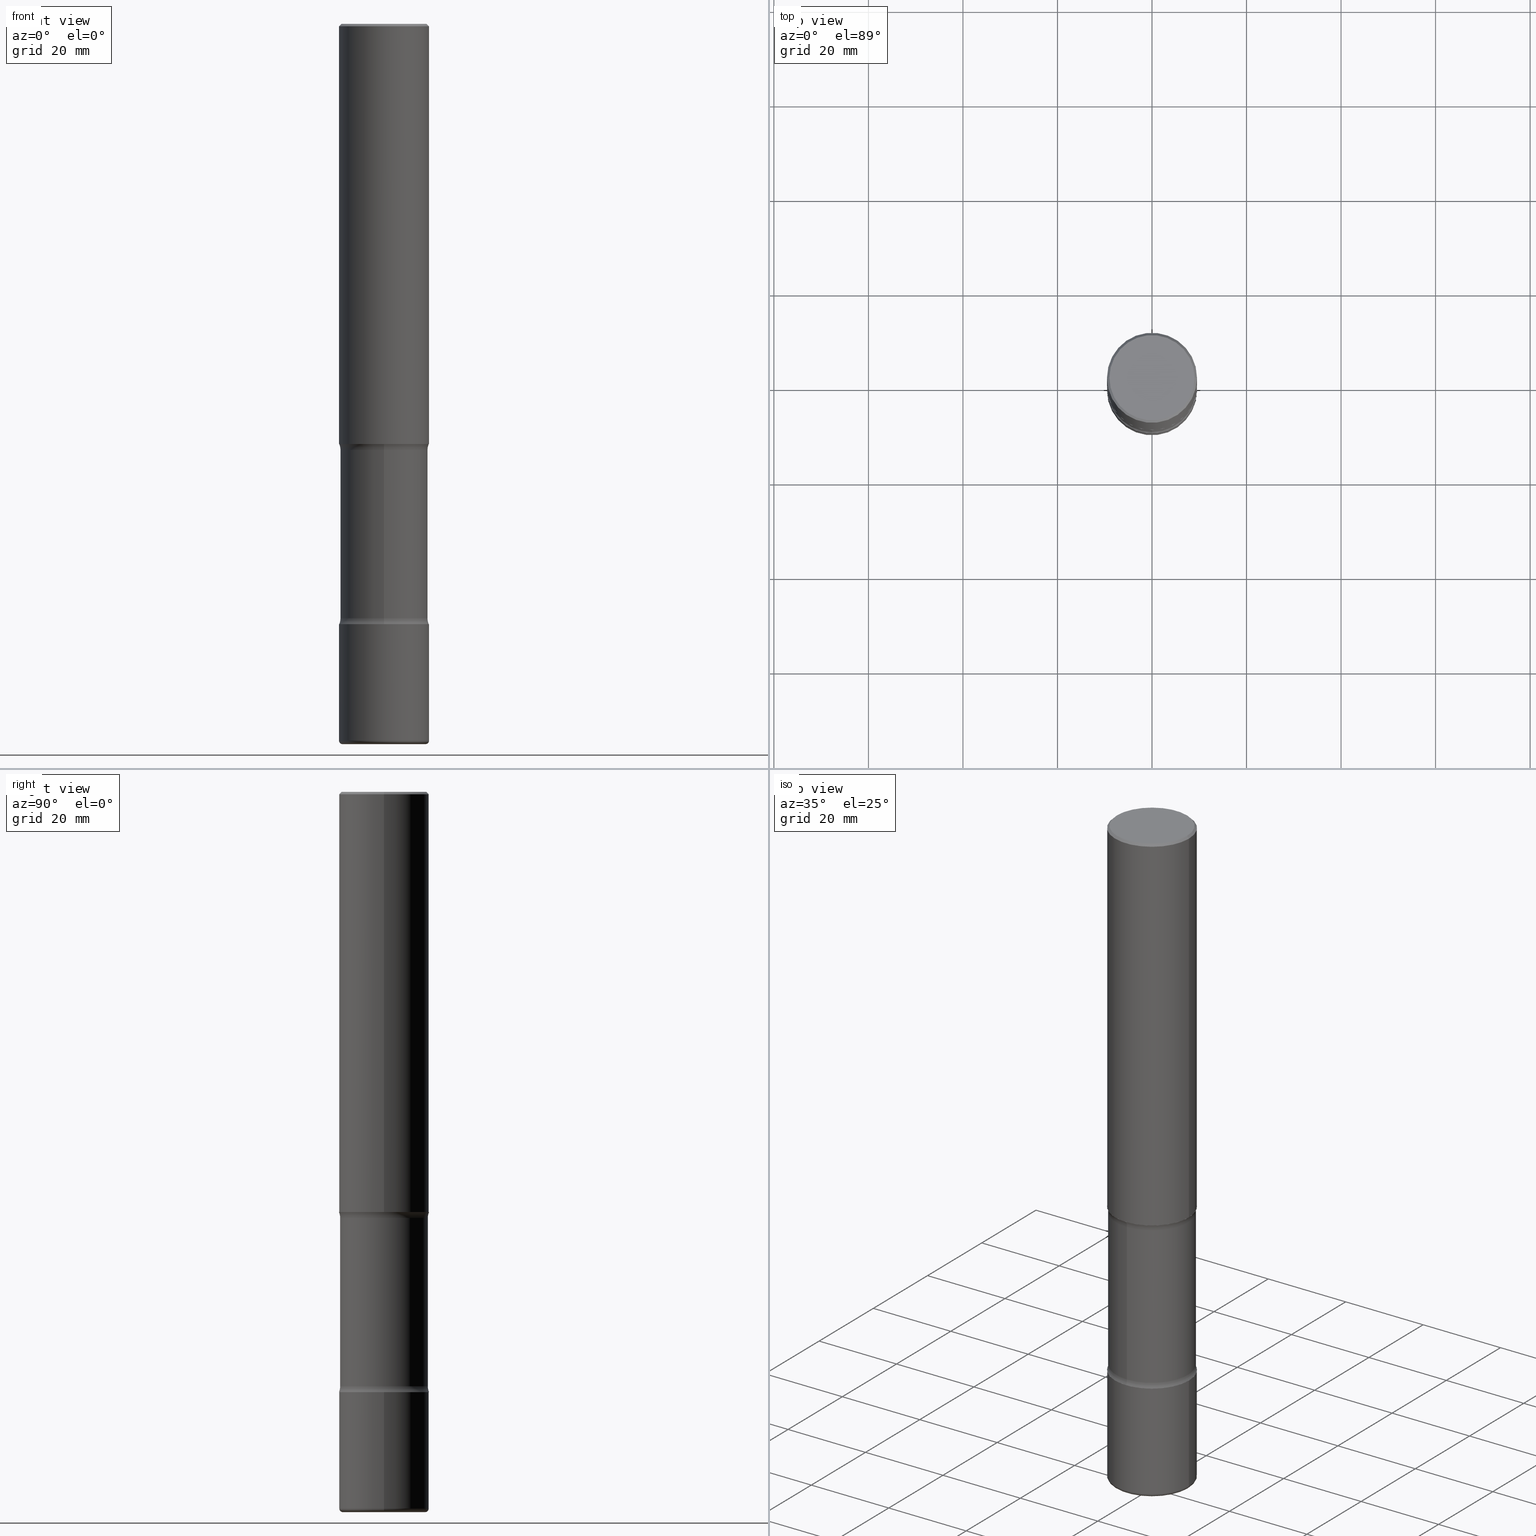
[diagram: canonical four-view strip — front | top / right | iso, engineering-drawing reading convention]
A machine part, canonical four-view strip (front | top / right | iso — engineering-drawing reading convention). The complete STEP part file that produces these views, byte-faithful:
ISO-10303-21;
HEADER;
FILE_DESCRIPTION (( 'STEP AP203' ),
    '1' );
FILE_NAME ('33560.STEP',
    '2024-03-01T22:49:51',
    ( '' ),
    ( '' ),
    'SwSTEP 2.0',
    'SolidWorks 2023',
    '' );
FILE_SCHEMA (( 'CONFIG_CONTROL_DESIGN' ));
ENDSEC;

DATA;
#1 = VECTOR ( 'NONE', #90, 39.37007874015748143 ) ;
#2 = CC_DESIGN_APPROVAL ( #49, ( #434 ) ) ;
#3 = CARTESIAN_POINT ( 'NONE',  ( 4.890937612370273159E-31, -6.982962677686291609E-17, -0.02000000000000000042 ) ) ;
#4 = VERTEX_POINT ( 'NONE', #304 ) ;
#5 = CALENDAR_DATE ( 2024, 1, 3 ) ;
#6 = CARTESIAN_POINT ( 'NONE',  ( 0.3750000000000007772, -2.642516375941192367E-15, -0.02000000000000000042 ) ) ;
#7 = DIRECTION ( 'NONE',  ( -1.000000000000000000, 6.982962677686265922E-15, -4.876176775795935793E-29 ) ) ;
#8 = CC_DESIGN_DATE_AND_TIME_ASSIGNMENT ( #295, #127, ( #394 ) ) ;
#9 = EDGE_CURVE ( 'NONE', #195, #76, #226, .T. ) ;
#10 = DIRECTION ( 'NONE',  ( 1.000000000000000000, -6.982962677686265922E-15, 4.876176775795935793E-29 ) ) ;
#11 = DIRECTION ( 'NONE',  ( 2.438088387897960049E-29, -3.491481338843145188E-15, -1.000000000000000000 ) ) ;
#12 = CARTESIAN_POINT ( 'NONE',  ( 4.890937612370273159E-31, -6.982962677686291609E-17, -0.02000000000000000042 ) ) ;
#13 = DIRECTION ( 'NONE',  ( 2.636232731993832963E-29, -3.218296539476719458E-15, -1.000000000000000000 ) ) ;
#14 = ORIENTED_EDGE ( 'NONE', *, *, #276, .F. ) ;
#15 = LINE ( 'NONE', #451, #463 ) ;
#16 = DIRECTION ( 'NONE',  ( -2.445468806185136597E-29, 3.491481338843145583E-15, 1.000000000000000000 ) ) ;
#17 = DIRECTION ( 'NONE',  ( -1.000000000000000000, 6.982962677686265922E-15, -4.883557194083112340E-29 ) ) ;
#18 = PERSON_AND_ORGANIZATION_ROLE ( 'design_owner' ) ;
#19 = EDGE_CURVE ( 'NONE', #489, #4, #247, .T. ) ;
#20 = DIRECTION ( 'NONE',  ( 1.000000000000000000, -6.982962677686265922E-15, 0.000000000000000000 ) ) ;
#21 = AXIS2_PLACEMENT_3D ( 'NONE', #94, #560, #177 ) ;
#22 = EDGE_LOOP ( 'NONE', ( #420, #126, #60, #453 ) ) ;
#23 = AXIS2_PLACEMENT_3D ( 'NONE', #290, #340, #253 ) ;
#24 = FACE_OUTER_BOUND ( 'NONE', #464, .T. ) ;
#25 = CARTESIAN_POINT ( 'NONE',  ( -1.043851414335219820E-46, 1.490343170380447200E-32, 4.268512490100411279E-18 ) ) ;
#26 = ADVANCED_FACE ( 'NONE', ( #266 ), #413, .F. ) ;
#27 =( NAMED_UNIT ( * ) SI_UNIT ( $, .STERADIAN. ) SOLID_ANGLE_UNIT ( ) );
#28 = ORIENTED_EDGE ( 'NONE', *, *, #175, .T. ) ;
#29 = CARTESIAN_POINT ( 'NONE',  ( 8.402143433667099614E-29, -1.278762557225431035E-14, -3.548989794855665014 ) ) ;
#30 = EDGE_LOOP ( 'NONE', ( #28, #353, #36, #334 ) ) ;
#31 = PLANE ( 'NONE',  #283 ) ;
#32 = VERTEX_POINT ( 'NONE', #431 ) ;
#33 = AXIS2_PLACEMENT_3D ( 'NONE', #284, #103, #436 ) ;
#34 = TOROIDAL_SURFACE ( 'NONE', #179, 0.4900000000000002132, 0.1250000000000000278 ) ;
#35 = AXIS2_PLACEMENT_3D ( 'NONE', #370, #124, #379 ) ;
#36 = ORIENTED_EDGE ( 'NONE', *, *, #350, .F. ) ;
#37 = VERTEX_POINT ( 'NONE', #430 ) ;
#38 = DIRECTION ( 'NONE',  ( 6.982962677686265922E-15, 1.000000000000000000, -3.218296539476719458E-15 ) ) ;
#39 = CIRCLE ( 'NONE', #433, 0.3750000000000001665 ) ;
#40 = VECTOR ( 'NONE', #505, 39.37007874015748143 ) ;
#41 = CARTESIAN_POINT ( 'NONE',  ( -0.3750000000000009437, -3.480471897263552734E-15, -3.500000000000000444 ) ) ;
#42 = ORIENTED_EDGE ( 'NONE', *, *, #91, .F. ) ;
#43 = EDGE_CURVE ( 'NONE', #459, #32, #556, .T. ) ;
#44 = DIRECTION ( 'NONE',  ( 2.636232731993832963E-29, -3.218296539476719458E-15, -1.000000000000000000 ) ) ;
#45 = MANIFOLD_SOLID_BREP ( 'Body-Move/Copy2[2]', #89 ) ;
#46 = CIRCLE ( 'NONE', #368, 0.3750000000000009437 ) ;
#47 = TOROIDAL_SURFACE ( 'NONE', #369, 0.4900000000000001021, 0.1250000000000000555 ) ;
#48 = CARTESIAN_POINT ( 'NONE',  ( -2.538384259175386404E-15, -0.3650000000000130362, -3.548989794855664126 ) ) ;
#49 = APPROVAL ( #203, 'UNSPECIFIED' ) ;
#50 = DIRECTION ( 'NONE',  ( 6.982962677686266711E-15, 1.000000000000000000, -2.913971193241879189E-15 ) ) ;
#51 = EDGE_LOOP ( 'NONE', ( #170, #255, #167, #206 ) ) ;
#52 = CARTESIAN_POINT ( 'NONE',  ( 1.210754101578474788E-28, -1.728635973968342417E-14, -4.951010205144336318 ) ) ;
#53 = DIRECTION ( 'NONE',  ( 2.445468806185136597E-29, -3.491481338843145583E-15, -1.000000000000000000 ) ) ;
#54 = FACE_OUTER_BOUND ( 'NONE', #51, .T. ) ;
#55 = DIRECTION ( 'NONE',  ( 2.636232731993832963E-29, -3.218296539476719458E-15, -1.000000000000000000 ) ) ;
#56 = AXIS2_PLACEMENT_3D ( 'NONE', #439, #53, #150 ) ;
#57 = APPROVAL_PERSON_ORGANIZATION ( #331, #285, #540 ) ;
#58 = DIRECTION ( 'NONE',  ( 2.445468806185136597E-29, -3.491481338843145583E-15, -1.000000000000000000 ) ) ;
#59 = FACE_OUTER_BOUND ( 'NONE', #507, .T. ) ;
#60 = ORIENTED_EDGE ( 'NONE', *, *, #305, .T. ) ;
#61 = PERSON_AND_ORGANIZATION_ROLE ( 'design_supplier' ) ;
#62 = CYLINDRICAL_SURFACE ( 'NONE', #337, 0.3750000000000002220 ) ;
#63 = EDGE_CURVE ( 'NONE', #192, #395, #314, .T. ) ;
#64 = DIRECTION ( 'NONE',  ( 7.105427357601001859E-15, 1.000000000000000000, -3.491481338843145583E-15 ) ) ;
#65 = VERTEX_POINT ( 'NONE', #48 ) ;
#66 = PERSON_AND_ORGANIZATION_ROLE ( 'creator' ) ;
#67 = FACE_OUTER_BOUND ( 'NONE', #128, .T. ) ;
#68 = APPLICATION_PROTOCOL_DEFINITION ( 'international standard', 'config_control_design', 1994, #245 ) ;
#69 = DIRECTION ( 'NONE',  ( 1.000000000000000000, -6.982962677686265922E-15, 4.876231632511976973E-29 ) ) ;
#70 = APPLICATION_PROTOCOL_DEFINITION ( 'international standard', 'config_control_design', 1994, #156 ) ;
#71 = VERTEX_POINT ( 'NONE', #6 ) ;
#72 = AXIS2_PLACEMENT_3D ( 'NONE', #3, #466, #220 ) ;
#73 = AXIS2_PLACEMENT_3D ( 'NONE', #158, #115, #452 ) ;
#74 = CC_DESIGN_PERSON_AND_ORGANIZATION_ASSIGNMENT ( #450, #396, ( #201 ) ) ;
#75 = DIRECTION ( 'NONE',  ( -1.000000000000000000, 6.982962677686265922E-15, -4.876176775795935793E-29 ) ) ;
#76 = VERTEX_POINT ( 'NONE', #269 ) ;
#77 = DIRECTION ( 'NONE',  ( 1.000000000000000000, -6.982962677686265133E-15, 4.883557194083112340E-29 ) ) ;
#78 = EDGE_LOOP ( 'NONE', ( #532, #393, #297, #259 ) ) ;
#79 = EDGE_LOOP ( 'NONE', ( #299, #257, #553, #341 ) ) ;
#80 = AXIS2_PLACEMENT_3D ( 'NONE', #485, #13, #50 ) ;
#81 = ORGANIZATION ( 'UNSPECIFIED', 'UNSPECIFIED', '' ) ;
#82 = VERTEX_POINT ( 'NONE', #176 ) ;
#83 = EDGE_CURVE ( 'NONE', #460, #71, #400, .T. ) ;
#84 = CARTESIAN_POINT ( 'NONE',  ( -0.3750000000000002220, 2.664535259100377275E-15, -1.844600658845590719E-29 ) ) ;
#85 = ADVANCED_FACE ( 'NONE', ( #309 ), #527, .F. ) ;
#86 = UNCERTAINTY_MEASURE_WITH_UNIT (LENGTH_MEASURE( 1.000000000000000082E-05 ), #319, 'distance_accuracy_value', 'NONE');
#87 = DIRECTION ( 'NONE',  ( 1.000000000000000000, -6.982962677686266711E-15, 4.876176775795935232E-29 ) ) ;
#88 = PERSON ( 'UNSPECIFIED', 'UNSPECIFIED', 'UNSPECIFIED', ('UNSPECIFIED'), ('UNSPECIFIED'), ('UNSPECIFIED') ) ;
#89 = CLOSED_SHELL ( 'NONE', ( #102, #292, #475, #404, #530, #484 ) ) ;
#90 = DIRECTION ( 'NONE',  ( 2.636232731993832963E-29, -3.218296539476719458E-15, -1.000000000000000000 ) ) ;
#91 = EDGE_CURVE ( 'NONE', #125, #338, #488, .T. ) ;
#92 = DIRECTION ( 'NONE',  ( 6.982962677686266711E-15, 1.000000000000000000, -2.993806020453985068E-15 ) ) ;
#93 = PERSON_AND_ORGANIZATION ( #88, #81 ) ;
#94 = CARTESIAN_POINT ( 'NONE',  ( 1.222734403092568523E-28, -1.745740669421572989E-14, -5.000000000000000000 ) ) ;
#95 = APPROVAL_STATUS ( 'not_yet_approved' ) ;
#96 = VECTOR ( 'NONE', #55, 39.37007874015748143 ) ;
#97 = LOCAL_TIME ( 17, 49, 51.00000000000000000, #227 ) ;
#98 = DIRECTION ( 'NONE',  ( 0.000000000000000000, 0.000000000000000000, 1.000000000000000000 ) ) ;
#99 = DIRECTION ( 'NONE',  ( 2.636232731993832963E-29, -3.218296539476719458E-15, -1.000000000000000000 ) ) ;
#100 = DIMENSIONAL_EXPONENTS ( 1.000000000000000000, 0.000000000000000000, 0.000000000000000000, 0.000000000000000000, 0.000000000000000000, 0.000000000000000000, 0.000000000000000000 ) ;
#101 = CYLINDRICAL_SURFACE ( 'NONE', #550, 0.3750000000000008327 ) ;
#102 = ADVANCED_FACE ( 'NONE', ( #174 ), #389, .T. ) ;
#103 = DIRECTION ( 'NONE',  ( -2.445468806185136597E-29, 3.491481338843145583E-15, 1.000000000000000000 ) ) ;
#104 = ORIENTED_EDGE ( 'NONE', *, *, #443, .T. ) ;
#105 = DIRECTION ( 'NONE',  ( 6.982962677686265922E-15, 1.000000000000000000, -2.993806020453986646E-15 ) ) ;
#106 = CARTESIAN_POINT ( 'NONE',  ( 0.3750000000000002220, -2.007601769834807990E-14, -5.000000000000000000 ) ) ;
#107 = CLOSED_SHELL ( 'NONE', ( #225, #375, #258, #168, #465, #348 ) ) ;
#108 = DIRECTION ( 'NONE',  ( 1.000000000000000000, -6.982962677686267499E-15, 0.000000000000000000 ) ) ;
#109 = LOCAL_TIME ( 17, 49, 51.00000000000000000, #339 ) ;
#110 = ORIENTED_EDGE ( 'NONE', *, *, #329, .T. ) ;
#111 = LENGTH_MEASURE_WITH_UNIT ( LENGTH_MEASURE( 0.02539999999999999897 ), #193 );
#112 = CARTESIAN_POINT ( 'NONE',  ( 4.890937612370273159E-31, -6.982962677686291609E-17, -0.02000000000000000042 ) ) ;
#113 = DIRECTION ( 'NONE',  ( 2.636232731993832963E-29, -3.218296539476719458E-15, -1.000000000000000000 ) ) ;
#114 = DATE_AND_TIME ( #502, #422 ) ;
#115 = DIRECTION ( 'NONE',  ( -2.445468806185136597E-29, 3.491481338843145583E-15, 1.000000000000000000 ) ) ;
#116 = EDGE_LOOP ( 'NONE', ( #493, #446 ) ) ;
#117 = APPROVAL_DATE_TIME ( #521, #49 ) ;
#118 = CARTESIAN_POINT ( 'NONE',  ( -1.043851414335219820E-46, 1.490343170380447200E-32, 4.268512490100411279E-18 ) ) ;
#119 = ADVANCED_BREP_SHAPE_REPRESENTATION ( '33560', ( #221, #45, #243, #479 ), #501 ) ;
#120 = VERTEX_POINT ( 'NONE', #427 ) ;
#121 = CIRCLE ( 'NONE', #33, 0.3750000000000002220 ) ;
#122 = AXIS2_PLACEMENT_3D ( 'NONE', #376, #161, #249 ) ;
#123 = CALENDAR_DATE ( 2024, 1, 3 ) ;
#124 = DIRECTION ( 'NONE',  ( -1.000000000000000000, 6.982962677686265922E-15, -4.883557194083112340E-29 ) ) ;
#125 = VERTEX_POINT ( 'NONE', #41 ) ;
#126 = ORIENTED_EDGE ( 'NONE', *, *, #524, .T. ) ;
#127 = DATE_TIME_ROLE ( 'creation_date' ) ;
#128 = EDGE_LOOP ( 'NONE', ( #418, #381, #169, #344 ) ) ;
#129 = CIRCLE ( 'NONE', #500, 0.03000000000000022787 ) ;
#130 = EDGE_CURVE ( 'NONE', #120, #460, #219, .T. ) ;
#131 = CC_DESIGN_APPROVAL ( #285, ( #394 ) ) ;
#132 = CARTESIAN_POINT ( 'NONE',  ( 0.3450000000000001954, -2.325326571669534261E-14, -5.969999999999999751 ) ) ;
#133 = CARTESIAN_POINT ( 'NONE',  ( 1.209819553019351831E-28, -1.729974300696207142E-14, -4.951010205144336318 ) ) ;
#134 = EDGE_CURVE ( 'NONE', #37, #65, #307, .T. ) ;
#135 = DIRECTION ( 'NONE',  ( -0.7071067811865472397, 2.468850131082253905E-15, -0.7071067811865477948 ) ) ;
#136 = CIRCLE ( 'NONE', #23, 0.3750000000000001665 ) ;
#137 = DIRECTION ( 'NONE',  ( -6.982962677686266711E-15, -1.000000000000000000, 3.491481338843145583E-15 ) ) ;
#138 = PERSON_AND_ORGANIZATION ( #88, #81 ) ;
#139 = CARTESIAN_POINT ( 'NONE',  ( 2.548781377355636207E-15, 0.3649999999999793965, -6.000000000000001776 ) ) ;
#140 = DIRECTION ( 'NONE',  ( 6.982962677686265922E-15, 1.000000000000000000, -2.993806020453987435E-15 ) ) ;
#141 = PLANE ( 'NONE',  #308 ) ;
#142 = VECTOR ( 'NONE', #159, 39.37007874015748143 ) ;
#143 = DIRECTION ( 'NONE',  ( 1.000000000000000000, -6.860497997771530774E-15, 4.844144428525341329E-29 ) ) ;
#144 = ORIENTED_EDGE ( 'NONE', *, *, #346, .T. ) ;
#145 = EDGE_CURVE ( 'NONE', #37, #4, #181, .T. ) ;
#146 = DIRECTION ( 'NONE',  ( -2.445468806185136597E-29, 3.491481338843145583E-15, 1.000000000000000000 ) ) ;
#147 = DIRECTION ( 'NONE',  ( 6.860497997771532351E-15, 1.000000000000000000, 0.000000000000000000 ) ) ;
#148 = CARTESIAN_POINT ( 'NONE',  ( -0.3750000000000007772, 2.548781377355492635E-15, -0.02000000000000000042 ) ) ;
#149 = ADVANCED_FACE ( 'NONE', ( #352 ), #523, .F. ) ;
#150 = DIRECTION ( 'NONE',  ( -1.000000000000000000, 6.982962677686266711E-15, 0.000000000000000000 ) ) ;
#151 = DIRECTION ( 'NONE',  ( 2.636232731993832963E-29, -3.218296539476719458E-15, -1.000000000000000000 ) ) ;
#152 = AXIS2_PLACEMENT_3D ( 'NONE', #351, #44, #519 ) ;
#153 = CARTESIAN_POINT ( 'NONE',  ( -2.504081769186460699E-15, -0.3650000000000207523, -5.999999999999999112 ) ) ;
#154 = CONICAL_SURFACE ( 'NONE', #428, 0.3750000000000007772, 0.7853981633974479459 ) ;
#155 = SHAPE_DEFINITION_REPRESENTATION ( #357, #119 ) ;
#156 = APPLICATION_CONTEXT ( 'configuration controlled 3d designs of mechanical parts and assemblies' ) ;
#157 =( NAMED_UNIT ( * ) PLANE_ANGLE_UNIT ( ) SI_UNIT ( $, .RADIAN. ) );
#158 = CARTESIAN_POINT ( 'NONE',  ( 1.467281283711081958E-28, -2.094888803305887271E-14, -6.000000000000000888 ) ) ;
#159 = DIRECTION ( 'NONE',  ( -2.445468806185136877E-29, 3.491481338843145188E-15, 1.000000000000000000 ) ) ;
#160 = EDGE_LOOP ( 'NONE', ( #261, #42 ) ) ;
#161 = DIRECTION ( 'NONE',  ( 2.438088387897960049E-29, -3.491481338843145188E-15, -1.000000000000000000 ) ) ;
#162 = ORIENTED_EDGE ( 'NONE', *, *, #429, .F. ) ;
#163 = AXIS2_PLACEMENT_3D ( 'NONE', #514, #469, #87 ) ;
#164 = AXIS2_PLACEMENT_3D ( 'NONE', #25, #458, #551 ) ;
#165 = APPROVAL_STATUS ( 'not_yet_approved' ) ;
#166 = CARTESIAN_POINT ( 'NONE',  ( 0.3750000000000002776, -2.346275459702592935E-14, -5.969999999999999751 ) ) ;
#167 = ORIENTED_EDGE ( 'NONE', *, *, #429, .T. ) ;
#168 = ADVANCED_FACE ( 'NONE', ( #473 ), #510, .T. ) ;
#169 = ORIENTED_EDGE ( 'NONE', *, *, #130, .T. ) ;
#170 = ORIENTED_EDGE ( 'NONE', *, *, #386, .F. ) ;
#171 = EDGE_CURVE ( 'NONE', #195, #395, #39, .T. ) ;
#172 = AXIS2_PLACEMENT_3D ( 'NONE', #312, #11, #7 ) ;
#173 = CC_DESIGN_APPROVAL ( #232, ( #201 ) ) ;
#174 = FACE_OUTER_BOUND ( 'NONE', #406, .T. ) ;
#175 = EDGE_CURVE ( 'NONE', #192, #410, #326, .T. ) ;
#176 = CARTESIAN_POINT ( 'NONE',  ( 0.3550000000000008149, -2.538996582575045781E-15, 4.268512490117958041E-18 ) ) ;
#177 = DIRECTION ( 'NONE',  ( -6.982962677686265922E-15, -1.000000000000000000, 3.218296539476719458E-15 ) ) ;
#178 = AXIS2_PLACEMENT_3D ( 'NONE', #132, #137, #264 ) ;
#179 = AXIS2_PLACEMENT_3D ( 'NONE', #491, #151, #325 ) ;
#180 = COORDINATED_UNIVERSAL_TIME_OFFSET ( 5, 0, .BEHIND. ) ;
#181 = LINE ( 'NONE', #139, #1 ) ;
#182 = ORIENTED_EDGE ( 'NONE', *, *, #443, .F. ) ;
#183 = CALENDAR_DATE ( 2024, 1, 3 ) ;
#184 = DIRECTION ( 'NONE',  ( -2.445468806185136877E-29, 3.491481338843145188E-15, 1.000000000000000000 ) ) ;
#185 = EDGE_CURVE ( 'NONE', #4, #489, #356, .T. ) ;
#186 = CYLINDRICAL_SURFACE ( 'NONE', #188, 0.3650000000000000466 ) ;
#187 = AXIS2_PLACEMENT_3D ( 'NONE', #194, #362, #534 ) ;
#188 = AXIS2_PLACEMENT_3D ( 'NONE', #359, #483, #105 ) ;
#189 = DIRECTION ( 'NONE',  ( 1.000000000000000000, 0.000000000000000000, 0.000000000000000000 ) ) ;
#190 = CARTESIAN_POINT ( 'NONE',  ( 1.467281283711081958E-28, -2.094888803305887271E-14, -6.000000000000000888 ) ) ;
#191 = CC_DESIGN_PERSON_AND_ORGANIZATION_ASSIGNMENT ( #543, #252, ( #394 ) ) ;
#192 = VERTEX_POINT ( 'NONE', #531 ) ;
#193 =( LENGTH_UNIT ( ) NAMED_UNIT ( * ) SI_UNIT ( $, .METRE. ) );
#194 = CARTESIAN_POINT ( 'NONE',  ( 1.486357676291951651E-28, -2.067570323369244855E-14, -6.000000000000000888 ) ) ;
#195 = VERTEX_POINT ( 'NONE', #239 ) ;
#196 = FACE_OUTER_BOUND ( 'NONE', #377, .T. ) ;
#197 = DIRECTION ( 'NONE',  ( -1.000000000000000000, 7.105427357601066545E-15, 0.000000000000000000 ) ) ;
#198 = APPROVAL_ROLE ( '' ) ;
#199 = DIRECTION ( 'NONE',  ( 1.000000000000000000, -6.982962677686266711E-15, 4.876176775795935793E-29 ) ) ;
#200 = DIRECTION ( 'NONE',  ( -2.445468806185136597E-29, 3.491481338843145583E-15, 1.000000000000000000 ) ) ;
#201 = SECURITY_CLASSIFICATION ( '', '', #311 ) ;
#202 = ORIENTED_EDGE ( 'NONE', *, *, #305, .F. ) ;
#203 = APPROVAL_STATUS ( 'not_yet_approved' ) ;
#204 = CARTESIAN_POINT ( 'NONE',  ( 1.222734403092568523E-28, -1.745740669421572989E-14, -5.000000000000000000 ) ) ;
#205 = CARTESIAN_POINT ( 'NONE',  ( 8.272994932934932699E-29, -1.262996188500065030E-14, -3.500000000000000444 ) ) ;
#206 = ORIENTED_EDGE ( 'NONE', *, *, #438, .F. ) ;
#207 = CARTESIAN_POINT ( 'NONE',  ( -0.3750000000000008327, 2.664535259100381613E-15, -1.844600658845593802E-29 ) ) ;
#208 = ORIENTED_EDGE ( 'NONE', *, *, #9, .F. ) ;
#209 = EDGE_CURVE ( 'NONE', #76, #211, #121, .T. ) ;
#210 = VECTOR ( 'NONE', #135, 39.37007874015748143 ) ;
#211 = VERTEX_POINT ( 'NONE', #106 ) ;
#212 = AXIS2_PLACEMENT_3D ( 'NONE', #262, #426, #38 ) ;
#213 = AXIS2_PLACEMENT_3D ( 'NONE', #238, #412, #10 ) ;
#214 = ORIENTED_EDGE ( 'NONE', *, *, #83, .F. ) ;
#215 = ORIENTED_EDGE ( 'NONE', *, *, #386, .T. ) ;
#216 = ORIENTED_EDGE ( 'NONE', *, *, #19, .T. ) ;
#217 = CIRCLE ( 'NONE', #80, 0.3750000000000002220 ) ;
#218 = AXIS2_PLACEMENT_3D ( 'NONE', #29, #293, #495 ) ;
#219 = LINE ( 'NONE', #515, #210 ) ;
#220 = DIRECTION ( 'NONE',  ( 1.000000000000000000, -6.982962677686266711E-15, 0.000000000000000000 ) ) ;
#221 = MANIFOLD_SOLID_BREP ( 'Body-Move/Copy2[1]', #107 ) ;
#222 = DIRECTION ( 'NONE',  ( 2.636232731993832963E-29, -3.218296539476719458E-15, -1.000000000000000000 ) ) ;
#223 = AXIS2_PLACEMENT_3D ( 'NONE', #536, #355, #318 ) ;
#224 = CIRCLE ( 'NONE', #380, 0.3750000000000002220 ) ;
#225 = ADVANCED_FACE ( 'NONE', ( #280 ), #286, .T. ) ;
#226 = LINE ( 'NONE', #84, #421 ) ;
#227 = COORDINATED_UNIVERSAL_TIME_OFFSET ( 5, 0, .BEHIND. ) ;
#228 = CARTESIAN_POINT ( 'NONE',  ( 0.3750000000000008327, -2.618611004132355933E-15, 1.828566290923479846E-29 ) ) ;
#229 = ORIENTED_EDGE ( 'NONE', *, *, #233, .F. ) ;
#230 = DIRECTION ( 'NONE',  ( 0.7071067811865472397, -7.319954787623254468E-15, -0.7071067811865477948 ) ) ;
#231 = DIRECTION ( 'NONE',  ( -2.445468806185136597E-29, 3.491481338843145583E-15, 1.000000000000000000 ) ) ;
#232 = APPROVAL ( #95, 'UNSPECIFIED' ) ;
#233 = EDGE_CURVE ( 'NONE', #303, #489, #300, .T. ) ;
#234 = ORIENTED_EDGE ( 'NONE', *, *, #175, .F. ) ;
#235 = AXIS2_PLACEMENT_3D ( 'NONE', #277, #360, #147 ) ;
#236 = FACE_OUTER_BOUND ( 'NONE', #425, .T. ) ;
#237 = ORIENTED_EDGE ( 'NONE', *, *, #435, .T. ) ;
#238 = CARTESIAN_POINT ( 'NONE',  ( 8.559140821647978089E-29, -1.222018468595101092E-14, -3.500000000000000444 ) ) ;
#239 = CARTESIAN_POINT ( 'NONE',  ( -0.3750000000000002776, -1.817960833379319733E-14, -5.969999999999999751 ) ) ;
#240 = DATE_AND_TIME ( #432, #327 ) ;
#241 = PRODUCT_RELATED_PRODUCT_CATEGORY ( 'detail', '', ( #517 ) ) ;
#242 = DIRECTION ( 'NONE',  ( 2.636232731993832402E-29, -3.218296539476719458E-15, -1.000000000000000000 ) ) ;
#243 = MANIFOLD_SOLID_BREP ( 'Body-Move/Copy2[4]', #270 ) ;
#244 = DIRECTION ( 'NONE',  ( -2.445468806185136597E-29, 3.491481338843145583E-15, 1.000000000000000000 ) ) ;
#245 = APPLICATION_CONTEXT ( 'configuration controlled 3d designs of mechanical parts and assemblies' ) ;
#246 = DIRECTION ( 'NONE',  ( 6.982962677686265922E-15, 1.000000000000000000, -3.218296539476719458E-15 ) ) ;
#247 = CIRCLE ( 'NONE', #537, 0.3649999999999999356 ) ;
#248 = EDGE_CURVE ( 'NONE', #65, #32, #454, .T. ) ;
#249 = DIRECTION ( 'NONE',  ( -1.000000000000000000, 6.982962677686265922E-15, -4.876176775795935793E-29 ) ) ;
#250 = APPROVAL_PERSON_ORGANIZATION ( #93, #49, #324 ) ;
#251 = EDGE_LOOP ( 'NONE', ( #512, #361, #271, #214 ) ) ;
#252 = PERSON_AND_ORGANIZATION_ROLE ( 'creator' ) ;
#253 = DIRECTION ( 'NONE',  ( 1.000000000000000000, -6.982962677686269866E-15, 0.000000000000000000 ) ) ;
#254 = EDGE_CURVE ( 'NONE', #65, #489, #445, .T. ) ;
#255 = ORIENTED_EDGE ( 'NONE', *, *, #248, .T. ) ;
#256 = FACE_OUTER_BOUND ( 'NONE', #437, .T. ) ;
#257 = ORIENTED_EDGE ( 'NONE', *, *, #9, .T. ) ;
#258 = ADVANCED_FACE ( 'NONE', ( #236 ), #402, .T. ) ;
#259 = ORIENTED_EDGE ( 'NONE', *, *, #43, .T. ) ;
#260 = AXIS2_PLACEMENT_3D ( 'NONE', #205, #541, #373 ) ;
#261 = ORIENTED_EDGE ( 'NONE', *, *, #329, .F. ) ;
#262 = CARTESIAN_POINT ( 'NONE',  ( 1.210754101578474788E-28, -1.728635973968342417E-14, -4.951010205144336318 ) ) ;
#263 = EDGE_CURVE ( 'NONE', #504, #303, #217, .T. ) ;
#264 = DIRECTION ( 'NONE',  ( 1.000000000000000000, -6.982962677686215435E-15, 0.000000000000000000 ) ) ;
#265 = AXIS2_PLACEMENT_3D ( 'NONE', #365, #143, #409 ) ;
#266 = FACE_OUTER_BOUND ( 'NONE', #78, .T. ) ;
#267 = DIRECTION ( 'NONE',  ( 6.982962677686265922E-15, 1.000000000000000000, -2.993806020453987435E-15 ) ) ;
#268 = PERSON_AND_ORGANIZATION ( #88, #81 ) ;
#269 = CARTESIAN_POINT ( 'NONE',  ( -0.3750000000000002220, -1.648623988445427734E-14, -5.000000000000000000 ) ) ;
#270 = CLOSED_SHELL ( 'NONE', ( #289, #542, #559, #26, #496, #149, #85, #546 ) ) ;
#271 = ORIENTED_EDGE ( 'NONE', *, *, #276, .T. ) ;
#272 = LOCAL_TIME ( 17, 49, 51.00000000000000000, #273 ) ;
#273 = COORDINATED_UNIVERSAL_TIME_OFFSET ( 5, 0, .BEHIND. ) ;
#274 = DIRECTION ( 'NONE',  ( 1.000000000000000000, -6.982962677686269866E-15, 0.000000000000000000 ) ) ;
#275 = CARTESIAN_POINT ( 'NONE',  ( -2.538384259175344988E-15, -0.3650000000000171996, -4.951010205144335430 ) ) ;
#276 = EDGE_CURVE ( 'NONE', #338, #71, #526, .T. ) ;
#277 = CARTESIAN_POINT ( 'NONE',  ( -3.361644018907968014E-15, -0.4900000000000130362, -3.548989794855663682 ) ) ;
#278 = ORIENTED_EDGE ( 'NONE', *, *, #134, .T. ) ;
#279 = CARTESIAN_POINT ( 'NONE',  ( 8.559140821647978089E-29, -1.222018468595101092E-14, -3.500000000000000444 ) ) ;
#280 = FACE_OUTER_BOUND ( 'NONE', #79, .T. ) ;
#281 = AXIS2_PLACEMENT_3D ( 'NONE', #477, #99, #140 ) ;
#282 = AXIS2_PLACEMENT_3D ( 'NONE', #415, #17, #529 ) ;
#283 = AXIS2_PLACEMENT_3D ( 'NONE', #296, #498, #75 ) ;
#284 = CARTESIAN_POINT ( 'NONE',  ( 1.222734403092568523E-28, -1.745740669421572989E-14, -5.000000000000000000 ) ) ;
#285 = APPROVAL ( #165, 'UNSPECIFIED' ) ;
#286 = CYLINDRICAL_SURFACE ( 'NONE', #343, 0.3750000000000002220 ) ;
#287 = ORIENTED_EDGE ( 'NONE', *, *, #424, .F. ) ;
#288 = FACE_OUTER_BOUND ( 'NONE', #374, .T. ) ;
#289 = ADVANCED_FACE ( 'NONE', ( #59 ), #492, .T. ) ;
#290 = CARTESIAN_POINT ( 'NONE',  ( 1.459944877292526494E-28, -2.084414359289357934E-14, -5.969999999999999751 ) ) ;
#291 = EDGE_LOOP ( 'NONE', ( #229, #554, #323, #403 ) ) ;
#292 = ADVANCED_FACE ( 'NONE', ( #328 ), #549, .T. ) ;
#293 = DIRECTION ( 'NONE',  ( 2.636232731993832963E-29, -3.218296539476719458E-15, -1.000000000000000000 ) ) ;
#294 = ORIENTED_EDGE ( 'NONE', *, *, #263, .T. ) ;
#295 = DATE_AND_TIME ( #123, #109 ) ;
#296 = CARTESIAN_POINT ( 'NONE',  ( 1.222734403092568523E-28, -1.745740669421572989E-14, -5.000000000000000000 ) ) ;
#297 = ORIENTED_EDGE ( 'NONE', *, *, #438, .T. ) ;
#298 = ORIENTED_EDGE ( 'NONE', *, *, #233, .T. ) ;
#299 = ORIENTED_EDGE ( 'NONE', *, *, #350, .T. ) ;
#300 = CIRCLE ( 'NONE', #265, 0.1250000000000001110 ) ;
#301 = EDGE_LOOP ( 'NONE', ( #294, #104 ) ) ;
#302 = TOROIDAL_SURFACE ( 'NONE', #414, 0.3450000000000001954, 0.03000000000000022787 ) ;
#303 = VERTEX_POINT ( 'NONE', #322 ) ;
#304 = CARTESIAN_POINT ( 'NONE',  ( 2.548781377355607414E-15, 0.3649999999999826716, -4.951010205144337206 ) ) ;
#305 = EDGE_CURVE ( 'NONE', #71, #460, #462, .T. ) ;
#306 = CARTESIAN_POINT ( 'NONE',  ( 8.402143433667099614E-29, -1.278762557225431035E-14, -3.548989794855665014 ) ) ;
#307 = CIRCLE ( 'NONE', #516, 0.3650000000000002687 ) ;
#308 = AXIS2_PLACEMENT_3D ( 'NONE', #279, #242, #246 ) ;
#309 = FACE_OUTER_BOUND ( 'NONE', #291, .T. ) ;
#310 = ORIENTED_EDGE ( 'NONE', *, *, #383, .T. ) ;
#311 = SECURITY_CLASSIFICATION_LEVEL ( 'unclassified' ) ;
#312 = CARTESIAN_POINT ( 'NONE',  ( 1.467281283711081958E-28, -2.094888803305887271E-14, -6.000000000000000888 ) ) ;
#313 = CC_DESIGN_PERSON_AND_ORGANIZATION_ASSIGNMENT ( #411, #61, ( #434 ) ) ;
#314 = CIRCLE ( 'NONE', #178, 0.03000000000000022787 ) ;
#315 = PLANE ( 'NONE',  #213 ) ;
#316 = DIRECTION ( 'NONE',  ( -2.445468806185136597E-29, 3.491481338843145583E-15, 1.000000000000000000 ) ) ;
#317 = DIRECTION ( 'NONE',  ( -1.000000000000000000, 6.982962677686266711E-15, 0.000000000000000000 ) ) ;
#318 = DIRECTION ( 'NONE',  ( 1.000000000000000000, -6.982962677686265133E-15, 4.883557194083112340E-29 ) ) ;
#319 =( CONVERSION_BASED_UNIT ( 'INCH', #111 ) LENGTH_UNIT ( ) NAMED_UNIT ( #100 ) );
#320 = CC_DESIGN_PERSON_AND_ORGANIZATION_ASSIGNMENT ( #321, #18, ( #517 ) ) ;
#321 = PERSON_AND_ORGANIZATION ( #88, #81 ) ;
#322 = CARTESIAN_POINT ( 'NONE',  ( -2.572686749164203246E-15, -0.3750000000000175970, -4.999999999999999112 ) ) ;
#323 = ORIENTED_EDGE ( 'NONE', *, *, #424, .T. ) ;
#324 = APPROVAL_ROLE ( '' ) ;
#325 = DIRECTION ( 'NONE',  ( 6.982962677686265922E-15, 1.000000000000000000, -3.218296539476719458E-15 ) ) ;
#326 = CIRCLE ( 'NONE', #470, 0.3450000000000003064 ) ;
#327 = LOCAL_TIME ( 17, 49, 51.00000000000000000, #180 ) ;
#328 = FACE_OUTER_BOUND ( 'NONE', #22, .T. ) ;
#329 = EDGE_CURVE ( 'NONE', #338, #125, #46, .T. ) ;
#330 = DIRECTION ( 'NONE',  ( -2.445468806185136597E-29, 3.491481338843145583E-15, 1.000000000000000000 ) ) ;
#331 = PERSON_AND_ORGANIZATION ( #88, #81 ) ;
#332 = PLANE ( 'NONE',  #122 ) ;
#333 = FACE_OUTER_BOUND ( 'NONE', #116, .T. ) ;
#334 = ORIENTED_EDGE ( 'NONE', *, *, #63, .F. ) ;
#335 = EDGE_CURVE ( 'NONE', #410, #195, #129, .T. ) ;
#336 = CARTESIAN_POINT ( 'NONE',  ( 1.459944877292526494E-28, -2.084414359289357934E-14, -5.969999999999999751 ) ) ;
#337 = AXIS2_PLACEMENT_3D ( 'NONE', #441, #367, #199 ) ;
#338 = VERTEX_POINT ( 'NONE', #354 ) ;
#339 = COORDINATED_UNIVERSAL_TIME_OFFSET ( 5, 0, .BEHIND. ) ;
#340 = DIRECTION ( 'NONE',  ( -2.445468806185136597E-29, 3.491481338843145583E-15, 1.000000000000000000 ) ) ;
#341 = ORIENTED_EDGE ( 'NONE', *, *, #346, .F. ) ;
#342 = ORIENTED_EDGE ( 'NONE', *, *, #145, .T. ) ;
#343 = AXIS2_PLACEMENT_3D ( 'NONE', #397, #244, #442 ) ;
#344 = ORIENTED_EDGE ( 'NONE', *, *, #83, .T. ) ;
#345 = CC_DESIGN_SECURITY_CLASSIFICATION ( #201, ( #434 ) ) ;
#346 = EDGE_CURVE ( 'NONE', #395, #211, #544, .T. ) ;
#347 = DIRECTION ( 'NONE',  ( 1.000000000000000000, -6.982962677686265922E-15, 0.000000000000000000 ) ) ;
#348 = ADVANCED_FACE ( 'NONE', ( #333 ), #31, .F. ) ;
#349 = DIRECTION ( 'NONE',  ( 2.636232731993832963E-29, -3.218296539476719458E-15, -1.000000000000000000 ) ) ;
#350 = EDGE_CURVE ( 'NONE', #395, #195, #136, .T. ) ;
#351 = CARTESIAN_POINT ( 'NONE',  ( 8.272994932934932699E-29, -1.262996188500065030E-14, -3.500000000000000444 ) ) ;
#352 = FACE_OUTER_BOUND ( 'NONE', #301, .T. ) ;
#353 = ORIENTED_EDGE ( 'NONE', *, *, #335, .T. ) ;
#354 = CARTESIAN_POINT ( 'NONE',  ( 0.3750000000000009437, -1.483879569008336725E-14, -3.500000000000000444 ) ) ;
#355 = DIRECTION ( 'NONE',  ( -2.445468806185136597E-29, 3.491481338843145583E-15, 1.000000000000000000 ) ) ;
#356 = CIRCLE ( 'NONE', #281, 0.3649999999999999356 ) ;
#357 = PRODUCT_DEFINITION_SHAPE ( 'NONE', 'NONE',  #394 ) ;
#358 = AXIS2_PLACEMENT_3D ( 'NONE', #118, #417, #69 ) ;
#359 = CARTESIAN_POINT ( 'NONE',  ( 1.486357676291951651E-28, -2.067570323369244855E-14, -6.000000000000000888 ) ) ;
#360 = DIRECTION ( 'NONE',  ( 1.000000000000000000, -6.860497997771530774E-15, 4.844144428525341329E-29 ) ) ;
#361 = ORIENTED_EDGE ( 'NONE', *, *, #91, .T. ) ;
#362 = DIRECTION ( 'NONE',  ( 2.636232731993832963E-29, -3.218296539476719458E-15, -1.000000000000000000 ) ) ;
#363 = CARTESIAN_POINT ( 'NONE',  ( 2.618611004132472684E-15, 0.3749999999999826805, -5.000000000000000888 ) ) ;
#364 = EDGE_CURVE ( 'NONE', #82, #120, #392, .T. ) ;
#365 = CARTESIAN_POINT ( 'NONE',  ( -3.361644018907930149E-15, -0.4900000000000173661, -4.951010205144335430 ) ) ;
#366 = ORIENTED_EDGE ( 'NONE', *, *, #63, .T. ) ;
#367 = DIRECTION ( 'NONE',  ( -2.445468806185136597E-29, 3.491481338843145583E-15, 1.000000000000000000 ) ) ;
#368 = AXIS2_PLACEMENT_3D ( 'NONE', #405, #16, #20 ) ;
#369 = AXIS2_PLACEMENT_3D ( 'NONE', #52, #535, #486 ) ;
#370 = CARTESIAN_POINT ( 'NONE',  ( 3.421651712066391936E-15, 0.4899999999999828382, -4.951010205144337206 ) ) ;
#371 = FACE_OUTER_BOUND ( 'NONE', #251, .T. ) ;
#372 = APPROVAL_DATE_TIME ( #114, #285 ) ;
#373 = DIRECTION ( 'NONE',  ( 6.982962677686265922E-15, 1.000000000000000000, -2.913971193241875639E-15 ) ) ;
#374 = EDGE_LOOP ( 'NONE', ( #208, #548, #144, #382 ) ) ;
#375 = ADVANCED_FACE ( 'NONE', ( #456 ), #302, .T. ) ;
#376 = CARTESIAN_POINT ( 'NONE',  ( 2.478951750578629731E-15, 0.3550000000000008149, -1.237341619044269188E-15 ) ) ;
#377 = EDGE_LOOP ( 'NONE', ( #182, #298, #216, #287 ) ) ;
#378 = AXIS2_PLACEMENT_3D ( 'NONE', #112, #231, #448 ) ;
#379 = DIRECTION ( 'NONE',  ( -6.982962677686264344E-15, -1.000000000000000000, 0.000000000000000000 ) ) ;
#380 = AXIS2_PLACEMENT_3D ( 'NONE', #204, #113, #539 ) ;
#381 = ORIENTED_EDGE ( 'NONE', *, *, #383, .F. ) ;
#382 = ORIENTED_EDGE ( 'NONE', *, *, #209, .F. ) ;
#383 = EDGE_CURVE ( 'NONE', #120, #82, #520, .T. ) ;
#384 = EDGE_LOOP ( 'NONE', ( #509, #237, #366, #545 ) ) ;
#385 = CARTESIAN_POINT ( 'NONE',  ( 8.392797948075870042E-29, -1.280100883953295759E-14, -3.548989794855665014 ) ) ;
#386 = EDGE_CURVE ( 'NONE', #65, #37, #455, .T. ) ;
#387 = DIRECTION ( 'NONE',  ( 2.636232731993832963E-29, -3.218296539476719458E-15, -1.000000000000000000 ) ) ;
#388 = EDGE_CURVE ( 'NONE', #125, #460, #547, .T. ) ;
#389 = CYLINDRICAL_SURFACE ( 'NONE', #163, 0.3750000000000008327 ) ;
#390 = DIRECTION ( 'NONE',  ( -2.445468806185136597E-29, 3.491481338843145583E-15, 1.000000000000000000 ) ) ;
#391 = VECTOR ( 'NONE', #184, 39.37007874015748143 ) ;
#392 = CIRCLE ( 'NONE', #358, 0.3550000000000008149 ) ;
#393 = ORIENTED_EDGE ( 'NONE', *, *, #134, .F. ) ;
#394 = PRODUCT_DEFINITION ( 'UNKNOWN', '', #434, #508 ) ;
#395 = VERTEX_POINT ( 'NONE', #166 ) ;
#396 = PERSON_AND_ORGANIZATION_ROLE ( 'classification_officer' ) ;
#397 = CARTESIAN_POINT ( 'NONE',  ( 0.000000000000000000, 0.000000000000000000, 0.000000000000000000 ) ) ;
#398 = FACE_OUTER_BOUND ( 'NONE', #457, .T. ) ;
#399 = CARTESIAN_POINT ( 'NONE',  ( -0.3450000000000001954, -1.839277115452122915E-14, -5.969999999999999751 ) ) ;
#400 = CIRCLE ( 'NONE', #72, 0.3750000000000007772 ) ;
#401 = CIRCLE ( 'NONE', #73, 0.3450000000000003064 ) ;
#402 = PLANE ( 'NONE',  #172 ) ;
#403 = ORIENTED_EDGE ( 'NONE', *, *, #185, .T. ) ;
#404 = ADVANCED_FACE ( 'NONE', ( #256 ), #332, .F. ) ;
#405 = CARTESIAN_POINT ( 'NONE',  ( 8.559140821647978089E-29, -1.222018468595101092E-14, -3.500000000000000444 ) ) ;
#406 = EDGE_LOOP ( 'NONE', ( #110, #449, #202, #14 ) ) ;
#407 = APPROVAL_DATE_TIME ( #525, #232 ) ;
#408 = DIRECTION ( 'NONE',  ( 1.000000000000000000, -6.982962677686266711E-15, 4.876176775795935232E-29 ) ) ;
#409 = DIRECTION ( 'NONE',  ( 6.860497997771527618E-15, 1.000000000000000000, 0.000000000000000000 ) ) ;
#410 = VERTEX_POINT ( 'NONE', #503 ) ;
#411 = PERSON_AND_ORGANIZATION ( #88, #81 ) ;
#412 = DIRECTION ( 'NONE',  ( -2.438088387897960049E-29, 3.491481338843145188E-15, 1.000000000000000000 ) ) ;
#413 = TOROIDAL_SURFACE ( 'NONE', #478, 0.4900000000000002132, 0.1250000000000000278 ) ;
#414 = AXIS2_PLACEMENT_3D ( 'NONE', #336, #200, #77 ) ;
#415 = CARTESIAN_POINT ( 'NONE',  ( 3.421651712066356043E-15, 0.4899999999999874456, -3.548989794855666791 ) ) ;
#416 = ORIENTED_EDGE ( 'NONE', *, *, #254, .T. ) ;
#417 = DIRECTION ( 'NONE',  ( -2.445468806185136597E-29, 3.491481338843145583E-15, 1.000000000000000000 ) ) ;
#418 = ORIENTED_EDGE ( 'NONE', *, *, #524, .F. ) ;
#419 = CARTESIAN_POINT ( 'NONE',  ( 0.3750000000000002220, -2.618611004132351594E-15, 1.828566290923477043E-29 ) ) ;
#420 = ORIENTED_EDGE ( 'NONE', *, *, #364, .F. ) ;
#421 = VECTOR ( 'NONE', #474, 39.37007874015748143 ) ;
#422 = LOCAL_TIME ( 17, 49, 51.00000000000000000, #497 ) ;
#423 = ORIENTED_EDGE ( 'NONE', *, *, #19, .F. ) ;
#424 = EDGE_CURVE ( 'NONE', #504, #4, #472, .T. ) ;
#425 = EDGE_LOOP ( 'NONE', ( #234, #440 ) ) ;
#426 = DIRECTION ( 'NONE',  ( 2.636232731993832963E-29, -3.218296539476719458E-15, -1.000000000000000000 ) ) ;
#427 = CARTESIAN_POINT ( 'NONE',  ( -0.3550000000000008149, 2.513866563967061380E-15, 4.268512490082953109E-18 ) ) ;
#428 = AXIS2_PLACEMENT_3D ( 'NONE', #12, #58, #317 ) ;
#429 = EDGE_CURVE ( 'NONE', #32, #459, #557, .T. ) ;
#430 = CARTESIAN_POINT ( 'NONE',  ( 2.548781377355573099E-15, 0.3649999999999875011, -3.548989794855666347 ) ) ;
#431 = CARTESIAN_POINT ( 'NONE',  ( -2.572686749164246633E-15, -0.3750000000000133227, -3.499999999999999112 ) ) ;
#432 = CALENDAR_DATE ( 2024, 1, 3 ) ;
#433 = AXIS2_PLACEMENT_3D ( 'NONE', #487, #481, #274 ) ;
#434 = PRODUCT_DEFINITION_FORMATION_WITH_SPECIFIED_SOURCE ( 'ANY', '', #517, .NOT_KNOWN. ) ;
#435 = EDGE_CURVE ( 'NONE', #410, #192, #401, .T. ) ;
#436 = DIRECTION ( 'NONE',  ( 1.000000000000000000, -6.982962677686263555E-15, 0.000000000000000000 ) ) ;
#437 = EDGE_LOOP ( 'NONE', ( #310, #461 ) ) ;
#438 = EDGE_CURVE ( 'NONE', #37, #459, #490, .T. ) ;
#439 = CARTESIAN_POINT ( 'NONE',  ( 4.890937612370273159E-31, -6.982962677686291609E-17, -0.02000000000000000042 ) ) ;
#440 = ORIENTED_EDGE ( 'NONE', *, *, #435, .F. ) ;
#441 = CARTESIAN_POINT ( 'NONE',  ( 0.000000000000000000, 0.000000000000000000, 0.000000000000000000 ) ) ;
#442 = DIRECTION ( 'NONE',  ( 1.000000000000000000, -6.982962677686266711E-15, 4.876176775795935793E-29 ) ) ;
#443 = EDGE_CURVE ( 'NONE', #303, #504, #224, .T. ) ;
#444 = CARTESIAN_POINT ( 'NONE',  ( 0.000000000000000000, 0.000000000000000000, 0.000000000000000000 ) ) ;
#445 = LINE ( 'NONE', #153, #96 ) ;
#446 = ORIENTED_EDGE ( 'NONE', *, *, #209, .T. ) ;
#447 = CARTESIAN_POINT ( 'NONE',  ( 2.618611004132436791E-15, 0.3749999999999880651, -3.500000000000001332 ) ) ;
#448 = DIRECTION ( 'NONE',  ( 1.000000000000000000, -6.982962677686266711E-15, 0.000000000000000000 ) ) ;
#449 = ORIENTED_EDGE ( 'NONE', *, *, #388, .T. ) ;
#450 = PERSON_AND_ORGANIZATION ( #88, #81 ) ;
#451 = CARTESIAN_POINT ( 'NONE',  ( 0.3750000000000007772, -2.642516375941192367E-15, -0.02000000000000000042 ) ) ;
#452 = DIRECTION ( 'NONE',  ( 1.000000000000000000, -6.982962677686267499E-15, 0.000000000000000000 ) ) ;
#453 = ORIENTED_EDGE ( 'NONE', *, *, #130, .F. ) ;
#454 = CIRCLE ( 'NONE', #235, 0.1250000000000000278 ) ;
#455 = CIRCLE ( 'NONE', #218, 0.3650000000000002687 ) ;
#456 = FACE_OUTER_BOUND ( 'NONE', #30, .T. ) ;
#457 = EDGE_LOOP ( 'NONE', ( #499, #215, #342, #423 ) ) ;
#458 = DIRECTION ( 'NONE',  ( -2.445468806185136597E-29, 3.491481338843145583E-15, 1.000000000000000000 ) ) ;
#459 = VERTEX_POINT ( 'NONE', #447 ) ;
#460 = VERTEX_POINT ( 'NONE', #148 ) ;
#461 = ORIENTED_EDGE ( 'NONE', *, *, #364, .T. ) ;
#462 = CIRCLE ( 'NONE', #378, 0.3750000000000007772 ) ;
#463 = VECTOR ( 'NONE', #230, 39.37007874015748143 ) ;
#464 = EDGE_LOOP ( 'NONE', ( #506, #162 ) ) ;
#465 = ADVANCED_FACE ( 'NONE', ( #288 ), #62, .T. ) ;
#466 = DIRECTION ( 'NONE',  ( -2.445468806185136597E-29, 3.491481338843145583E-15, 1.000000000000000000 ) ) ;
#467 = CC_DESIGN_DATE_AND_TIME_ASSIGNMENT ( #240, #476, ( #201 ) ) ;
#468 = EDGE_CURVE ( 'NONE', #211, #76, #538, .T. ) ;
#469 = DIRECTION ( 'NONE',  ( -2.445468806185136597E-29, 3.491481338843145583E-15, 1.000000000000000000 ) ) ;
#470 = AXIS2_PLACEMENT_3D ( 'NONE', #190, #316, #108 ) ;
#471 = DIRECTION ( 'NONE',  ( 6.982962677686265922E-15, 1.000000000000000000, -3.218296539476719458E-15 ) ) ;
#472 = CIRCLE ( 'NONE', #35, 0.1250000000000001110 ) ;
#473 = FACE_OUTER_BOUND ( 'NONE', #384, .T. ) ;
#474 = DIRECTION ( 'NONE',  ( -2.445468806185136877E-29, 3.491481338843145188E-15, 1.000000000000000000 ) ) ;
#475 = ADVANCED_FACE ( 'NONE', ( #67 ), #154, .T. ) ;
#476 = DATE_TIME_ROLE ( 'classification_date' ) ;
#477 = CARTESIAN_POINT ( 'NONE',  ( 1.209819553019351831E-28, -1.729974300696207142E-14, -4.951010205144336318 ) ) ;
#478 = AXIS2_PLACEMENT_3D ( 'NONE', #385, #349, #471 ) ;
#479 = AXIS2_PLACEMENT_3D ( 'NONE', #552, #98, #189 ) ;
#480 = CARTESIAN_POINT ( 'NONE',  ( 1.222734403092568523E-28, -1.745740669421572989E-14, -5.000000000000000000 ) ) ;
#481 = DIRECTION ( 'NONE',  ( -2.445468806185136597E-29, 3.491481338843145583E-15, 1.000000000000000000 ) ) ;
#482 = ORIENTED_EDGE ( 'NONE', *, *, #145, .F. ) ;
#483 = DIRECTION ( 'NONE',  ( 2.636232731993832963E-29, -3.218296539476719458E-15, -1.000000000000000000 ) ) ;
#484 = ADVANCED_FACE ( 'NONE', ( #371 ), #101, .T. ) ;
#485 = CARTESIAN_POINT ( 'NONE',  ( 1.222734403092568523E-28, -1.745740669421572989E-14, -5.000000000000000000 ) ) ;
#486 = DIRECTION ( 'NONE',  ( 6.982962677686265922E-15, 1.000000000000000000, -3.218296539476719458E-15 ) ) ;
#487 = CARTESIAN_POINT ( 'NONE',  ( 1.459944877292526494E-28, -2.084414359289357934E-14, -5.969999999999999751 ) ) ;
#488 = CIRCLE ( 'NONE', #518, 0.3750000000000009437 ) ;
#489 = VERTEX_POINT ( 'NONE', #275 ) ;
#490 = CIRCLE ( 'NONE', #282, 0.1250000000000000278 ) ;
#491 = CARTESIAN_POINT ( 'NONE',  ( 8.392797948075870042E-29, -1.280100883953295759E-14, -3.548989794855665014 ) ) ;
#492 = CYLINDRICAL_SURFACE ( 'NONE', #187, 0.3650000000000000466 ) ;
#493 = ORIENTED_EDGE ( 'NONE', *, *, #468, .T. ) ;
#494 = DIRECTION ( 'NONE',  ( 1.000000000000000000, -6.982962677686263555E-15, 0.000000000000000000 ) ) ;
#495 = DIRECTION ( 'NONE',  ( 6.982962677686266711E-15, 1.000000000000000000, -2.993806020453985068E-15 ) ) ;
#496 = ADVANCED_FACE ( 'NONE', ( #24 ), #141, .F. ) ;
#497 = COORDINATED_UNIVERSAL_TIME_OFFSET ( 5, 0, .BEHIND. ) ;
#498 = DIRECTION ( 'NONE',  ( 2.438088387897960049E-29, -3.491481338843145188E-15, -1.000000000000000000 ) ) ;
#499 = ORIENTED_EDGE ( 'NONE', *, *, #254, .F. ) ;
#500 = AXIS2_PLACEMENT_3D ( 'NONE', #399, #64, #197 ) ;
#501 =( GEOMETRIC_REPRESENTATION_CONTEXT ( 3 ) GLOBAL_UNCERTAINTY_ASSIGNED_CONTEXT ( ( #86 ) ) GLOBAL_UNIT_ASSIGNED_CONTEXT ( ( #319, #157, #27 ) ) REPRESENTATION_CONTEXT ( 'NONE', 'WORKASPACE' ) );
#502 = CALENDAR_DATE ( 2024, 1, 3 ) ;
#503 = CARTESIAN_POINT ( 'NONE',  ( -0.3450000000000003064, -1.833856196423986308E-14, -6.000000000000000888 ) ) ;
#504 = VERTEX_POINT ( 'NONE', #363 ) ;
#505 = DIRECTION ( 'NONE',  ( -2.445468806185136877E-29, 3.491481338843145188E-15, 1.000000000000000000 ) ) ;
#506 = ORIENTED_EDGE ( 'NONE', *, *, #43, .F. ) ;
#507 = EDGE_LOOP ( 'NONE', ( #278, #416, #555, #482 ) ) ;
#508 = DESIGN_CONTEXT ( 'detailed design', #245, 'design' ) ;
#509 = ORIENTED_EDGE ( 'NONE', *, *, #335, .F. ) ;
#510 = TOROIDAL_SURFACE ( 'NONE', #223, 0.3450000000000001954, 0.03000000000000022787 ) ;
#511 = APPROVAL_PERSON_ORGANIZATION ( #138, #232, #198 ) ;
#512 = ORIENTED_EDGE ( 'NONE', *, *, #388, .F. ) ;
#513 = CC_DESIGN_PERSON_AND_ORGANIZATION_ASSIGNMENT ( #268, #66, ( #434 ) ) ;
#514 = CARTESIAN_POINT ( 'NONE',  ( 0.000000000000000000, 0.000000000000000000, 0.000000000000000000 ) ) ;
#515 = CARTESIAN_POINT ( 'NONE',  ( -0.3750000000000007772, 2.548781377355492635E-15, -0.02000000000000000042 ) ) ;
#516 = AXIS2_PLACEMENT_3D ( 'NONE', #306, #222, #92 ) ;
#517 = PRODUCT ( '33560', '33560', '', ( #522 ) ) ;
#518 = AXIS2_PLACEMENT_3D ( 'NONE', #558, #390, #347 ) ;
#519 = DIRECTION ( 'NONE',  ( 6.982962677686265922E-15, 1.000000000000000000, -2.913971193241875639E-15 ) ) ;
#520 = CIRCLE ( 'NONE', #164, 0.3550000000000008149 ) ;
#521 = DATE_AND_TIME ( #183, #97 ) ;
#522 = MECHANICAL_CONTEXT ( 'NONE', #156, 'mechanical' ) ;
#523 = PLANE ( 'NONE',  #21 ) ;
#524 = EDGE_CURVE ( 'NONE', #82, #71, #15, .T. ) ;
#525 = DATE_AND_TIME ( #5, #272 ) ;
#526 = LINE ( 'NONE', #228, #391 ) ;
#527 = TOROIDAL_SURFACE ( 'NONE', #212, 0.4900000000000001021, 0.1250000000000000555 ) ;
#528 = AXIS2_PLACEMENT_3D ( 'NONE', #480, #146, #494 ) ;
#529 = DIRECTION ( 'NONE',  ( -6.982962677686265133E-15, -1.000000000000000000, 0.000000000000000000 ) ) ;
#530 = ADVANCED_FACE ( 'NONE', ( #533 ), #315, .F. ) ;
#531 = CARTESIAN_POINT ( 'NONE',  ( 0.3450000000000003064, -2.335801015686063914E-14, -6.000000000000000888 ) ) ;
#532 = ORIENTED_EDGE ( 'NONE', *, *, #248, .F. ) ;
#533 = FACE_OUTER_BOUND ( 'NONE', #160, .T. ) ;
#534 = DIRECTION ( 'NONE',  ( 6.982962677686265922E-15, 1.000000000000000000, -2.993806020453986646E-15 ) ) ;
#535 = DIRECTION ( 'NONE',  ( 2.636232731993832963E-29, -3.218296539476719458E-15, -1.000000000000000000 ) ) ;
#536 = CARTESIAN_POINT ( 'NONE',  ( 1.459944877292526494E-28, -2.084414359289357934E-14, -5.969999999999999751 ) ) ;
#537 = AXIS2_PLACEMENT_3D ( 'NONE', #133, #387, #267 ) ;
#538 = CIRCLE ( 'NONE', #528, 0.3750000000000002220 ) ;
#539 = DIRECTION ( 'NONE',  ( 6.982962677686266711E-15, 1.000000000000000000, -2.913971193241879189E-15 ) ) ;
#540 = APPROVAL_ROLE ( '' ) ;
#541 = DIRECTION ( 'NONE',  ( 2.636232731993832963E-29, -3.218296539476719458E-15, -1.000000000000000000 ) ) ;
#542 = ADVANCED_FACE ( 'NONE', ( #196 ), #47, .F. ) ;
#543 = PERSON_AND_ORGANIZATION ( #88, #81 ) ;
#544 = LINE ( 'NONE', #419, #142 ) ;
#545 = ORIENTED_EDGE ( 'NONE', *, *, #171, .F. ) ;
#546 = ADVANCED_FACE ( 'NONE', ( #398 ), #186, .T. ) ;
#547 = LINE ( 'NONE', #207, #40 ) ;
#548 = ORIENTED_EDGE ( 'NONE', *, *, #171, .T. ) ;
#549 = CONICAL_SURFACE ( 'NONE', #56, 0.3750000000000007772, 0.7853981633974479459 ) ;
#550 = AXIS2_PLACEMENT_3D ( 'NONE', #444, #330, #408 ) ;
#551 = DIRECTION ( 'NONE',  ( 1.000000000000000000, -6.982962677686265922E-15, 4.876231632511976973E-29 ) ) ;
#552 = CARTESIAN_POINT ( 'NONE',  ( 0.000000000000000000, 0.000000000000000000, 0.000000000000000000 ) ) ;
#553 = ORIENTED_EDGE ( 'NONE', *, *, #468, .F. ) ;
#554 = ORIENTED_EDGE ( 'NONE', *, *, #263, .F. ) ;
#555 = ORIENTED_EDGE ( 'NONE', *, *, #185, .F. ) ;
#556 = CIRCLE ( 'NONE', #152, 0.3750000000000006661 ) ;
#557 = CIRCLE ( 'NONE', #260, 0.3750000000000006661 ) ;
#558 = CARTESIAN_POINT ( 'NONE',  ( 8.559140821647978089E-29, -1.222018468595101092E-14, -3.500000000000000444 ) ) ;
#559 = ADVANCED_FACE ( 'NONE', ( #54 ), #34, .F. ) ;
#560 = DIRECTION ( 'NONE',  ( -2.636232731993832402E-29, 3.218296539476719458E-15, 1.000000000000000000 ) ) ;
ENDSEC;
END-ISO-10303-21;
